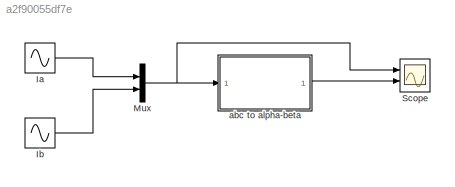
MODEL slx_a2f90055df7e
KIND model
CONFIG AbsTol = auto
CONFIG FixedStep = 0.001
CONFIG MaxStep = auto
CONFIG MinStep = auto
CONFIG RelTol = 1e-3
CONFIG SampleTimeConstraint = Unconstrained
CONFIG Solver = ode3
CONFIG SolverMode = Auto
CONFIG SolverName = ode3
CONFIG StartTime = 0.0
CONFIG StopTime = 10.0
BLOCK [Sin] Ia
  Frequency = 2*pi*50
  Ports = [0, 1]
  SampleTime = 0
BLOCK [Sin] Ib
  Frequency = 2*pi*50
  Phase = -2*pi/3
  Ports = [0, 1]
  SampleTime = 0
BLOCK [Mux] Mux
  DisplayOption = bar
  Inputs = 2
  Ports = [2, 1]
BLOCK [Scope] Scope
  Floating = off
  LegendLocations = 0.94566     0.91727    0.034375    0.037539\n0.90139     0.44178    0.078646    0.037539
  LimitDataPoints = off
  NumInputPorts = 2
  Ports = [2]
  ShowLegends = on
  YMax = 5~5
  YMin = -5~-5
  ZoomMode = xonly
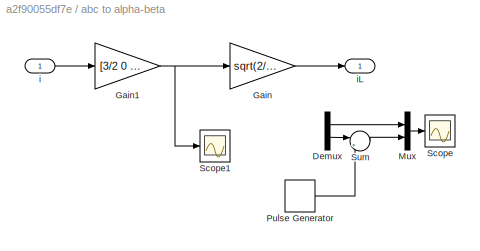
BLOCK [SubSystem] abc to alpha-beta
  Ports = [1, 1]
  RequestExecContextInheritance = off
BLOCK [Demux] abc to alpha-beta/Demux
  DisplayOption = bar
  Outputs = 2
  Ports = [1, 2]
BLOCK [Gain] abc to alpha-beta/Gain
  Gain = sqrt(2/3)
  OutDataTypeStr = Inherit: Inherit via internal rule
  ParamDataTypeStr = Inherit: Inherit via internal rule
  SaturateOnIntegerOverflow = off
BLOCK [Gain] abc to alpha-beta/Gain1
  Gain = [3/2 0 ; sqrt(3/2) sqrt(3)]
  Multiplication = Matrix(K*u)
  OutDataTypeStr = Inherit: Inherit via internal rule
  ParamDataTypeStr = Inherit: Inherit via internal rule
  SaturateOnIntegerOverflow = off
BLOCK [Mux] abc to alpha-beta/Mux
  DisplayOption = bar
  Inputs = 2
  Ports = [2, 1]
BLOCK [DiscretePulseGenerator] abc to alpha-beta/Pulse Generator
  Period = 1
  Ports = [0, 1]
  PulseType = Time based
  PulseWidth = 50
BLOCK [Scope] abc to alpha-beta/Scope
  Floating = off
  LegendLocations = 0.85456     0.91623     0.10543    0.038015
  NumInputPorts = 1
  Ports = [1]
  SaveName = ScopeData1
  ShowLegends = on
BLOCK [Scope] abc to alpha-beta/Scope1
  Floating = off
  LegendLocations = 0.86082     0.91623    0.099165    0.038015
  NumInputPorts = 1
  Ports = [1]
  SaveName = ScopeData2
  ShowLegends = on
BLOCK [Sum] abc to alpha-beta/Sum
  IconShape = round
  InputSameDT = off
  Inputs = |++
  OutDataTypeStr = Inherit: Inherit via internal rule
  Ports = [2, 1]
  SaturateOnIntegerOverflow = off
BLOCK [Inport] abc to alpha-beta/i
  IconDisplay = Port number
BLOCK [Outport] abc to alpha-beta/iL
  IconDisplay = Port number
LINE Ia:1 -> Mux:1
LINE Ib:1 -> Mux:2
NET Mux:1 -> Scope:1, abc to alpha-beta:1
LINE abc to alpha-beta/Demux:1 -> abc to alpha-beta/Mux:1
LINE abc to alpha-beta/Demux:2 -> abc to alpha-beta/Sum:1
NET abc to alpha-beta/Gain1:1 -> abc to alpha-beta/Gain:1, abc to alpha-beta/Scope1:1
LINE abc to alpha-beta/Gain:1 -> abc to alpha-beta/iL:1
LINE abc to alpha-beta/Mux:1 -> abc to alpha-beta/Scope:1
LINE abc to alpha-beta/Pulse Generator:1 -> abc to alpha-beta/Sum:2
LINE abc to alpha-beta/Sum:1 -> abc to alpha-beta/Mux:2
LINE abc to alpha-beta/i:1 -> abc to alpha-beta/Gain1:1
LINE abc to alpha-beta:1 -> Scope:2
note: NET lines group one-source signal fan-out (src -> all destinations, sorted); 1:1 wires keep LINE
